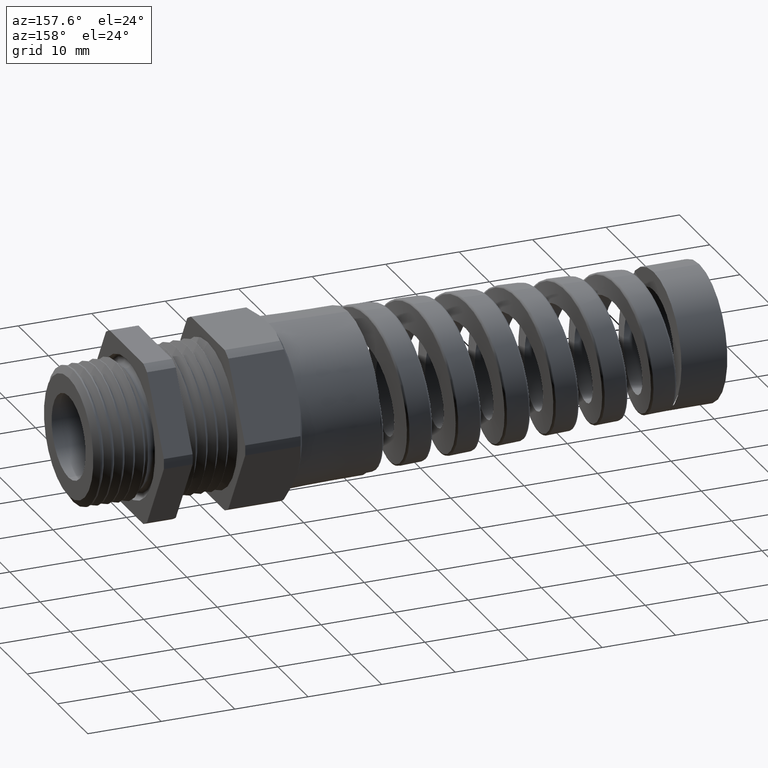
[diagram: clean part render]
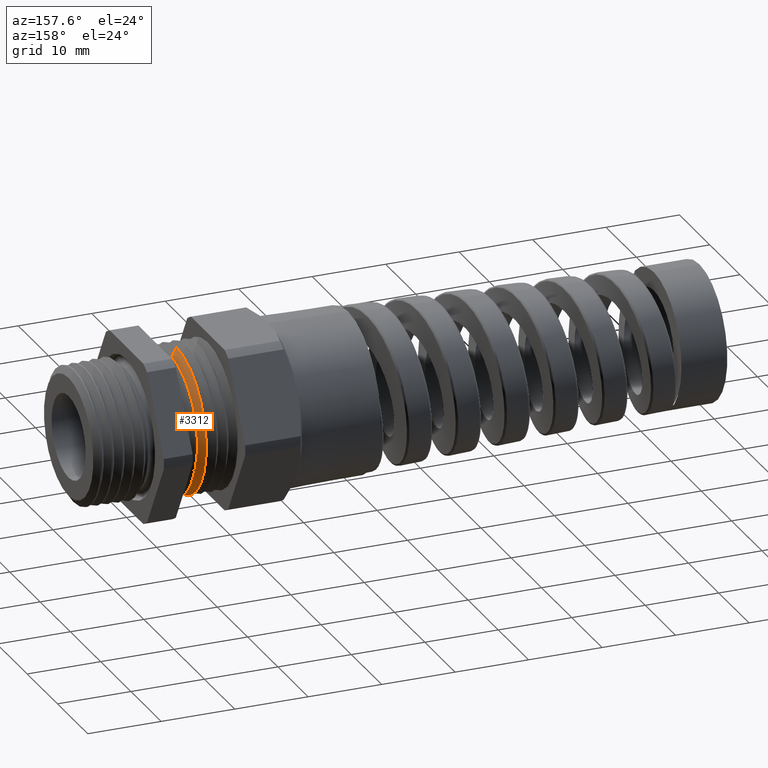
[diagram: same view with one face highlighted and labeled with its STEP entity id]
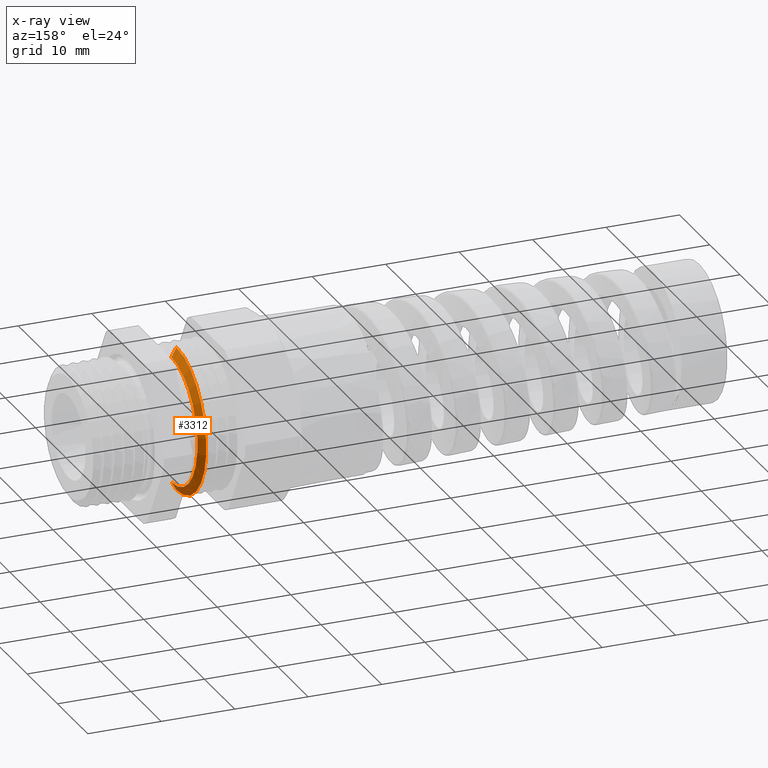
[diagram: x-ray of the same camera — body ghosted, the highlighted face saturated]
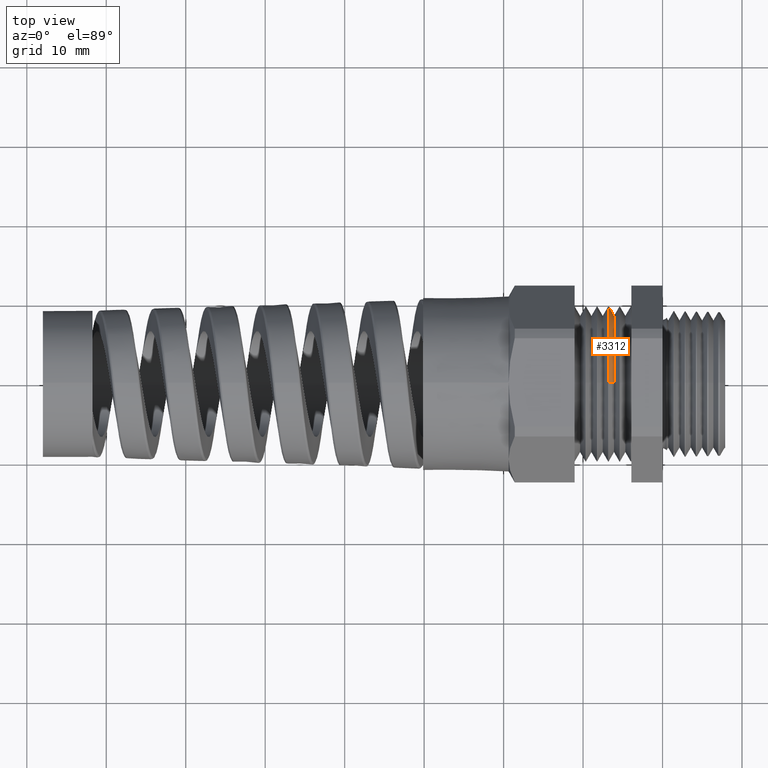
[diagram: same view with one face highlighted and labeled with its STEP entity id]
A machine part, auxiliary view. The second image highlights one B-rep face of the part: STEP entity #3312.
The next image is the same camera in x-ray: the body ghosted, the highlighted face saturated — about 1% of this face is hidden behind the body in this view.
A second angle (top view) of the same face is appended — the face is thin or edge-on in the first view.
In plain terms, the highlighted conical surface has half-angle 60 deg.
Its self-contained STEP definition (entity closure, byte-faithful):
#3178 = EDGE_LOOP ( 'NONE', ( #3180, #3187, #3192, #3198 ) ) ;
#3180 = ORIENTED_EDGE ( 'NONE', *, *, #3183, .F. ) ;
#3183 = EDGE_CURVE ( 'NONE', #3185, #3186, #3414, .T. ) ;
#3185 = VERTEX_POINT ( 'NONE', #3405 ) ;
#3186 = VERTEX_POINT ( 'NONE', #3403 ) ;
#3187 = ORIENTED_EDGE ( 'NONE', *, *, #3188, .T. ) ;
#3188 = EDGE_CURVE ( 'NONE', #3185, #3190, #3398, .T. ) ;
#3190 = VERTEX_POINT ( 'NONE', #3391 ) ;
#3192 = ORIENTED_EDGE ( 'NONE', *, *, #3194, .T. ) ;
#3194 = EDGE_CURVE ( 'NONE', #3190, #3197, #3385, .T. ) ;
#3197 = VERTEX_POINT ( 'NONE', #3376 ) ;
#3198 = ORIENTED_EDGE ( 'NONE', *, *, #3199, .F. ) ;
#3199 = EDGE_CURVE ( 'NONE', #3186, #3197, #3518, .T. ) ;
#3312 = ADVANCED_FACE ( 'NONE', ( #3672 ), #3666, .T. ) ;
#3376 = CARTESIAN_POINT ( 'NONE',  ( -0.2678333333333332600, 0.0000000000000000000, 0.3869000000000000200 ) ) ;
#3378 = DIRECTION ( 'NONE',  ( 0.0000000000000000000, 0.0000000000000000000, -1.000000000000000000 ) ) ;
#3380 = DIRECTION ( 'NONE',  ( 1.000000000000000000, 0.0000000000000000000, 0.0000000000000000000 ) ) ;
#3382 = CARTESIAN_POINT ( 'NONE',  ( -0.2678333333333332600, 0.0000000000000000000, 0.0000000000000000000 ) ) ;
#3383 = AXIS2_PLACEMENT_3D ( 'NONE', #3382, #3380, #3378 ) ;
#3385 = CIRCLE ( 'NONE', #3383, 0.3869000000000000200 ) ;
#3391 = CARTESIAN_POINT ( 'NONE',  ( -0.2678333333333332600, 4.738158465901109900E-017, -0.3869000000000000200 ) ) ;
#3394 = DIRECTION ( 'NONE',  ( -0.4999999999999943400, 1.060575238724910900E-016, -0.8660254037844418200 ) ) ;
#3395 = VECTOR ( 'NONE', #3394, 39.37007874015748100 ) ;
#3397 = CARTESIAN_POINT ( 'NONE',  ( -0.2678333333333332600, 4.738158465901109900E-017, -0.3869000000000000200 ) ) ;
#3398 = LINE ( 'NONE', #3397, #3395 ) ;
#3403 = CARTESIAN_POINT ( 'NONE',  ( -0.2403333461552116500, 4.446500411237423700E-017, 0.3392686249999999900 ) ) ;
#3405 = CARTESIAN_POINT ( 'NONE',  ( -0.2403333461552116500, 0.0000000000000000000, -0.3392686249999999900 ) ) ;
#3407 = DIRECTION ( 'NONE',  ( 0.0000000000000000000, 0.0000000000000000000, -1.000000000000000000 ) ) ;
#3409 = DIRECTION ( 'NONE',  ( 1.000000000000000000, 0.0000000000000000000, 0.0000000000000000000 ) ) ;
#3411 = CARTESIAN_POINT ( 'NONE',  ( -0.2403333461552116500, 0.0000000000000000000, 0.0000000000000000000 ) ) ;
#3412 = AXIS2_PLACEMENT_3D ( 'NONE', #3411, #3409, #3407 ) ;
#3414 = CIRCLE ( 'NONE', #3412, 0.3392686249999999900 ) ;
#3514 = DIRECTION ( 'NONE',  ( -0.4999999999999943400, 0.0000000000000000000, 0.8660254037844418200 ) ) ;
#3515 = VECTOR ( 'NONE', #3514, 39.37007874015748100 ) ;
#3517 = CARTESIAN_POINT ( 'NONE',  ( -0.2678333333333332600, 0.0000000000000000000, 0.3869000000000000200 ) ) ;
#3518 = LINE ( 'NONE', #3517, #3515 ) ;
#3661 = DIRECTION ( 'NONE',  ( -1.000000000000000000, 0.0000000000000000000, 0.0000000000000000000 ) ) ;
#3663 = CARTESIAN_POINT ( 'NONE',  ( -0.2678333333333332600, 0.0000000000000000000, 0.0000000000000000000 ) ) ;
#3665 = AXIS2_PLACEMENT_3D ( 'NONE', #3663, #3661, #3802 ) ;
#3666 = CONICAL_SURFACE ( 'NONE', #3665, 0.3869000000000000200, 1.047197551196604300 ) ;
#3672 = FACE_OUTER_BOUND ( 'NONE', #3178, .T. ) ;
#3802 = DIRECTION ( 'NONE',  ( 0.0000000000000000000, 0.0000000000000000000, 1.000000000000000000 ) ) ;